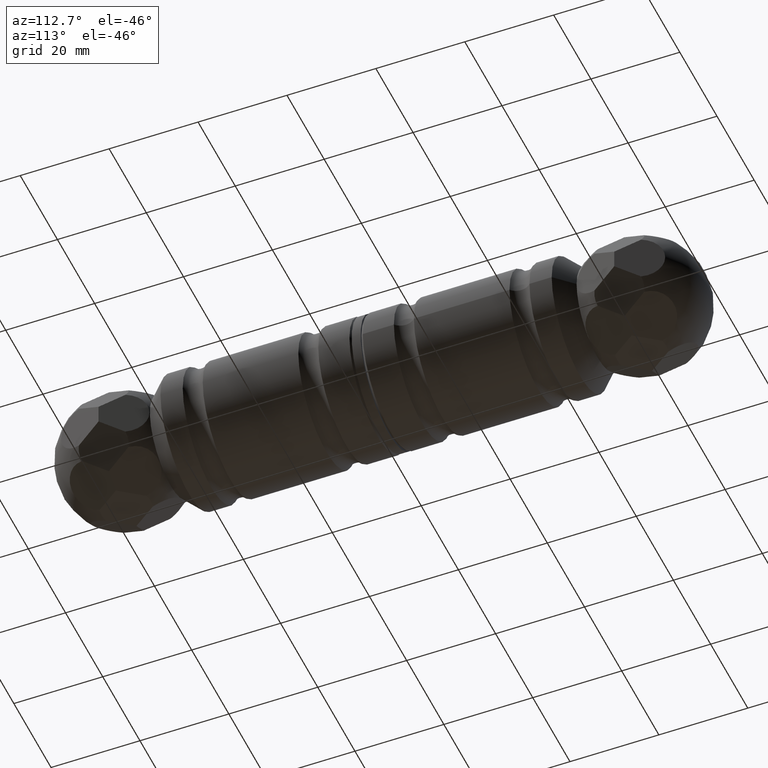
[diagram: clean part render]
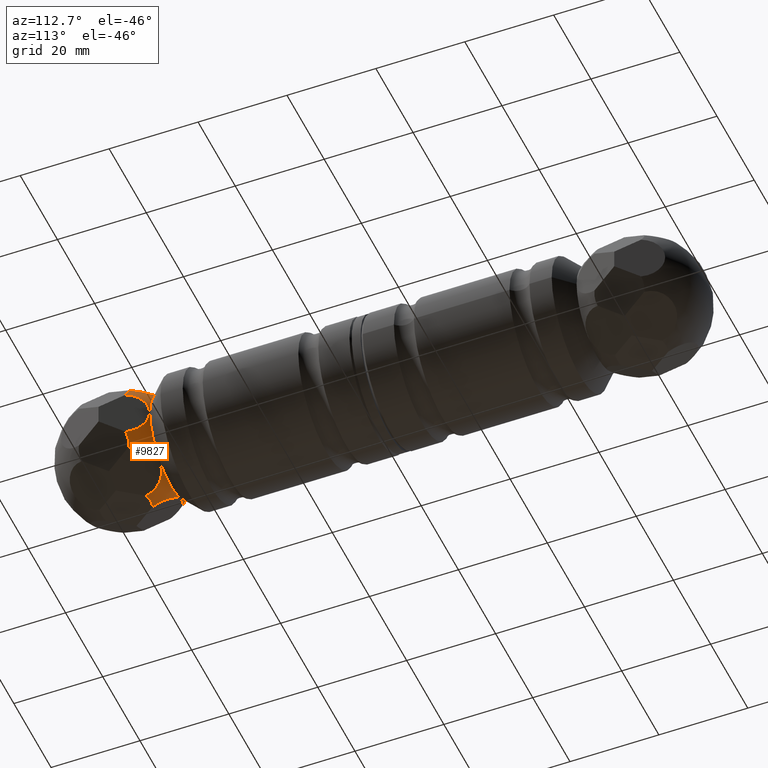
[diagram: same view with one face highlighted and labeled with its STEP entity id]
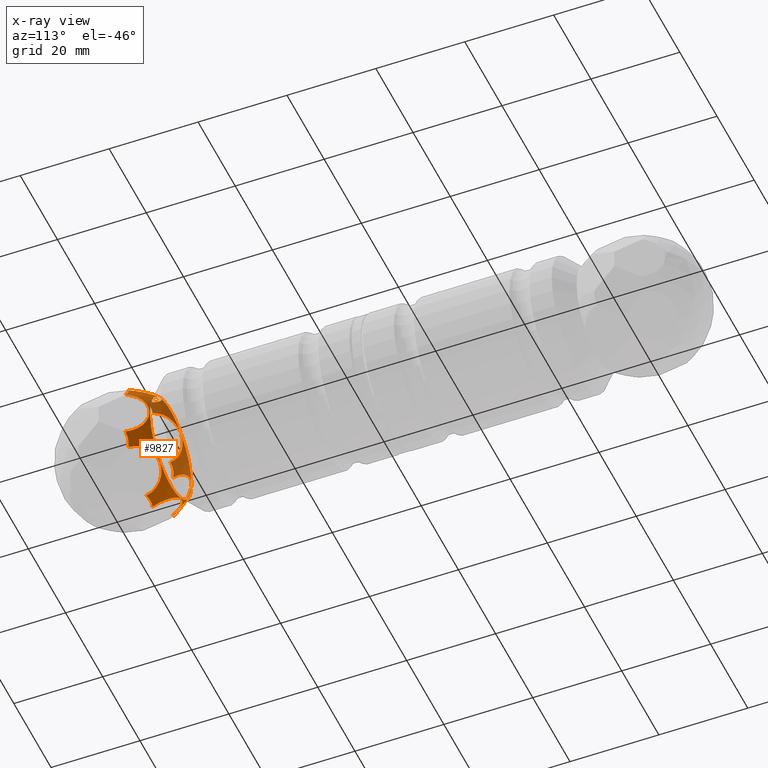
[diagram: x-ray of the same camera — body ghosted, the highlighted face saturated]
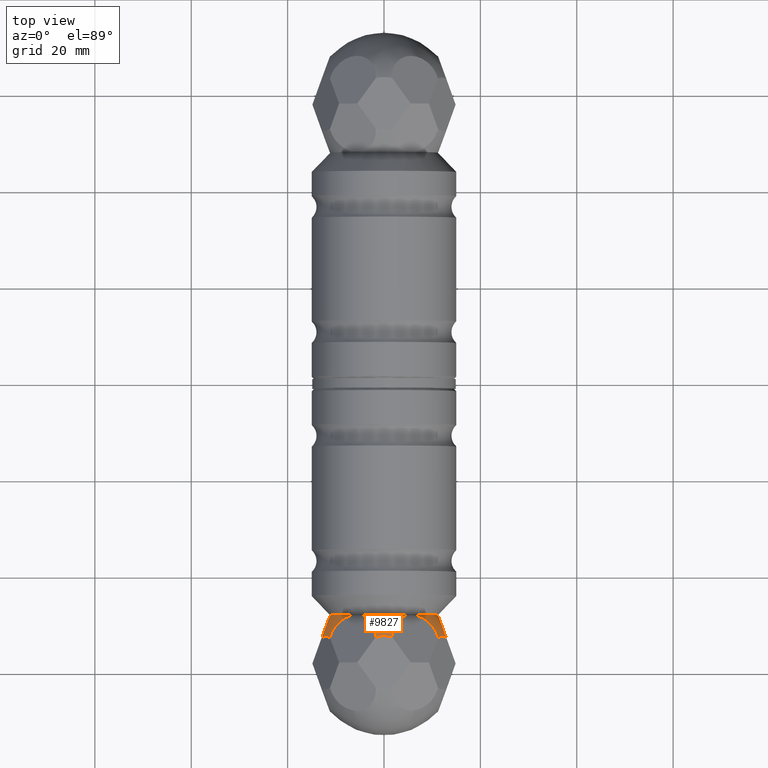
[diagram: same view with one face highlighted and labeled with its STEP entity id]
A machine part, auxiliary view. The second image highlights one B-rep face of the part: STEP entity #9827.
The next image is the same camera in x-ray: the body ghosted, the highlighted face saturated — about 34% of this face is hidden behind the body in this view.
A second angle (top view) of the same face is appended — the face is thin or edge-on in the first view.
In plain terms, the highlighted spherical surface has radius 15 mm.
Its self-contained STEP definition (entity closure, byte-faithful):
#26 = DIRECTION ( 'NONE',  ( -1.000000000000000000, 1.258552433082305433E-15, -1.069769568119959500E-14 ) ) ;
#210 = VERTEX_POINT ( 'NONE', #1002 ) ;
#557 = VERTEX_POINT ( 'NONE', #2635 ) ;
#596 = DIRECTION ( 'NONE',  ( 0.000000000000000000, 0.000000000000000000, -1.000000000000000000 ) ) ;
#604 = DIRECTION ( 'NONE',  ( -0.8660254037844433705, 1.258552433082297347E-15, 0.4999999999999917843 ) ) ;
#696 = ORIENTED_EDGE ( 'NONE', *, *, #9849, .T. ) ;
#743 = EDGE_CURVE ( 'NONE', #12859, #11657, #13451, .T. ) ;
#886 = CIRCLE ( 'NONE', #2001, 5.513392784846703698 ) ;
#1002 = CARTESIAN_POINT ( 'NONE',  ( -11.22412204793012158, 51.75975497768799016, 8.459250342631023045 ) ) ;
#1026 = CARTESIAN_POINT ( 'NONE',  ( 12.08105438279286759, 56.99999999999999289, 6.975000000000103562 ) ) ;
#1038 = ORIENTED_EDGE ( 'NONE', *, *, #5070, .F. ) ;
#1409 = ORIENTED_EDGE ( 'NONE', *, *, #6094, .F. ) ;
#1484 = EDGE_CURVE ( 'NONE', #6245, #5237, #3318, .T. ) ;
#1526 = EDGE_LOOP ( 'NONE', ( #1038 ) ) ;
#1577 = DIRECTION ( 'NONE',  ( 0.4698463103929464979, 0.3420201433256693790, 0.8137976813493777994 ) ) ;
#1650 = AXIS2_PLACEMENT_3D ( 'NONE', #3725, #10144, #12026 ) ;
#1822 = CARTESIAN_POINT ( 'NONE',  ( 1.713864669725671863, 51.75975497768806122, 13.95000000000002949 ) ) ;
#1880 = CIRCLE ( 'NONE', #12227, 5.513392784846689487 ) ;
#2001 = AXIS2_PLACEMENT_3D ( 'NONE', #1026, #11387, #5115 ) ;
#2008 = CARTESIAN_POINT ( 'NONE',  ( -12.93798671765578412, 51.75975497768804701, -5.490749657368947823 ) ) ;
#2067 = DIRECTION ( 'NONE',  ( 0.9396926207859083169, 0.3420201433256694346, -0.000000000000000000 ) ) ;
#2282 = CARTESIAN_POINT ( 'NONE',  ( -1.479066868981249828E-13, 56.99999999999999289, 13.95000000000001350 ) ) ;
#2635 = CARTESIAN_POINT ( 'NONE',  ( 11.22412204793005586, 51.75975497768796174, 8.459250342631092323 ) ) ;
#2685 = DIRECTION ( 'NONE',  ( 6.162975822039154730E-32, -1.000000000000000000, 0.000000000000000000 ) ) ;
#2743 = CARTESIAN_POINT ( 'NONE',  ( -6.554356029981602383, 52.22881900060691152, -11.35247765482381865 ) ) ;
#2778 = CARTESIAN_POINT ( 'NONE',  ( 0.000000000000000000, 47.00000000000000000, -6.842277657836020854E-46 ) ) ;
#3032 = DIRECTION ( 'NONE',  ( 0.3420201433256693790, -0.9396926207859080948, 0.000000000000000000 ) ) ;
#3318 = CIRCLE ( 'NONE', #9186, 5.513392784846712580 ) ;
#3595 = DIRECTION ( 'NONE',  ( 0.8660254037844417052, -6.468871966888534240E-32, -0.4999999999999948930 ) ) ;
#3725 = CARTESIAN_POINT ( 'NONE',  ( 13.10871205996341615, 52.22881900060691152, -2.996431540116346828E-34 ) ) ;
#3852 = CARTESIAN_POINT ( 'NONE',  ( 6.554356029981681431, 52.22881900060691152, 11.35247765482377069 ) ) ;
#3947 = FACE_OUTER_BOUND ( 'NONE', #5463, .T. ) ;
#3950 = VERTEX_POINT ( 'NONE', #8504 ) ;
#3994 = CARTESIAN_POINT ( 'NONE',  ( -12.08105438279296528, 56.99999999999999289, 6.974999999999931255 ) ) ;
#4215 = CARTESIAN_POINT ( 'NONE',  ( -13.10871205996341615, 52.22881900060691152, 7.223520691251005368E-33 ) ) ;
#4498 = DIRECTION ( 'NONE',  ( 1.000000000000000000, -1.258552433082300305E-15, 1.761973406315220506E-14 ) ) ;
#4610 = DIRECTION ( 'NONE',  ( 1.000000000000000000, 0.000000000000000000, 0.000000000000000000 ) ) ;
#4635 = AXIS2_PLACEMENT_3D ( 'NONE', #3852, #4918, #11135 ) ;
#4897 = ORIENTED_EDGE ( 'NONE', *, *, #1484, .F. ) ;
#4918 = DIRECTION ( 'NONE',  ( -0.4698463103929521600, 0.3420201433256693790, -0.8137976813493744688 ) ) ;
#5070 = EDGE_CURVE ( 'NONE', #10375, #10375, #11253, .T. ) ;
#5076 = CARTESIAN_POINT ( 'NONE',  ( -12.93798671765575925, 51.75975497768796174, 5.490749657368924730 ) ) ;
#5084 = AXIS2_PLACEMENT_3D ( 'NONE', #3994, #10547, #11448 ) ;
#5115 = DIRECTION ( 'NONE',  ( -0.5000000000000072164, 0.000000000000000000, 0.8660254037844344888 ) ) ;
#5138 = EDGE_CURVE ( 'NONE', #557, #11889, #8515, .T. ) ;
#5164 = AXIS2_PLACEMENT_3D ( 'NONE', #2743, #1577, #604 ) ;
#5192 = DIRECTION ( 'NONE',  ( -0.8660254037844328234, 0.000000000000000000, -0.5000000000000101030 ) ) ;
#5237 = VERTEX_POINT ( 'NONE', #7757 ) ;
#5463 = EDGE_LOOP ( 'NONE', ( #12312, #8817, #1409, #696, #11335, #9842, #6773, #11896, #7305, #6688, #4897, #9082 ) ) ;
#5552 = DIRECTION ( 'NONE',  ( -0.000000000000000000, 0.000000000000000000, 1.000000000000000000 ) ) ;
#5582 = EDGE_CURVE ( 'NONE', #13188, #3950, #11332, .T. ) ;
#5799 = CARTESIAN_POINT ( 'NONE',  ( 12.93798671765575925, 51.75975497768796174, -5.490749657368924730 ) ) ;
#5938 = AXIS2_PLACEMENT_3D ( 'NONE', #4215, #2067, #3032 ) ;
#5971 = DIRECTION ( 'NONE',  ( -0.8660254037844310471, 8.938567588209319741E-32, -0.5000000000000132117 ) ) ;
#6018 = EDGE_CURVE ( 'NONE', #557, #8872, #886, .T. ) ;
#6024 = AXIS2_PLACEMENT_3D ( 'NONE', #2778, #2685, #596 ) ;
#6094 = EDGE_CURVE ( 'NONE', #7838, #11889, #1880, .T. ) ;
#6154 = CIRCLE ( 'NONE', #7899, 5.513392784846717909 ) ;
#6245 = VERTEX_POINT ( 'NONE', #5799 ) ;
#6517 = VERTEX_POINT ( 'NONE', #10784 ) ;
#6556 = CARTESIAN_POINT ( 'NONE',  ( -6.554356029981764031, 52.22881900060691152, 11.35247765482373339 ) ) ;
#6688 = ORIENTED_EDGE ( 'NONE', *, *, #8041, .T. ) ;
#6773 = ORIENTED_EDGE ( 'NONE', *, *, #12698, .F. ) ;
#6819 = AXIS2_PLACEMENT_3D ( 'NONE', #11819, #10680, #4498 ) ;
#6932 = CIRCLE ( 'NONE', #8153, 5.513392784846724126 ) ;
#6987 = CARTESIAN_POINT ( 'NONE',  ( -12.08105438279281607, 56.99999999999999289, -6.975000000000185274 ) ) ;
#7305 = ORIENTED_EDGE ( 'NONE', *, *, #5582, .F. ) ;
#7377 = FACE_OUTER_BOUND ( 'NONE', #1526, .T. ) ;
#7588 = EDGE_CURVE ( 'NONE', #6517, #3950, #8230, .T. ) ;
#7723 = DIRECTION ( 'NONE',  ( 0.8660254037844363761, 0.000000000000000000, 0.5000000000000041078 ) ) ;
#7757 = CARTESIAN_POINT ( 'NONE',  ( 11.22412204793017132, 51.75975497768796174, -8.459250342630936004 ) ) ;
#7838 = VERTEX_POINT ( 'NONE', #9724 ) ;
#7899 = AXIS2_PLACEMENT_3D ( 'NONE', #6987, #5971, #9090 ) ;
#8041 = EDGE_CURVE ( 'NONE', #13188, #5237, #6932, .T. ) ;
#8153 = AXIS2_PLACEMENT_3D ( 'NONE', #9649, #9383, #5192 ) ;
#8230 = CIRCLE ( 'NONE', #5164, 5.513392784846725014 ) ;
#8303 = EDGE_CURVE ( 'NONE', #12859, #210, #9666, .T. ) ;
#8504 = CARTESIAN_POINT ( 'NONE',  ( -1.713864669725547296, 51.75975497768801858, -13.95000000000003482 ) ) ;
#8515 = CIRCLE ( 'NONE', #4635, 5.513392784846733896 ) ;
#8633 = CARTESIAN_POINT ( 'NONE',  ( 12.08105438279296528, 56.99999999999999289, -6.974999999999931255 ) ) ;
#8817 = ORIENTED_EDGE ( 'NONE', *, *, #5138, .T. ) ;
#8857 = CIRCLE ( 'NONE', #11472, 5.513392784846710803 ) ;
#8872 = VERTEX_POINT ( 'NONE', #10446 ) ;
#9082 = ORIENTED_EDGE ( 'NONE', *, *, #11106, .T. ) ;
#9090 = DIRECTION ( 'NONE',  ( 0.5000000000000132117, -1.258552433082298925E-15, -0.8660254037844309360 ) ) ;
#9141 = CARTESIAN_POINT ( 'NONE',  ( 1.713864669725831735, 51.75975497768794753, -13.94999999999997264 ) ) ;
#9155 = AXIS2_PLACEMENT_3D ( 'NONE', #10926, #5552, #4610 ) ;
#9186 = AXIS2_PLACEMENT_3D ( 'NONE', #8633, #3595, #11746 ) ;
#9383 = DIRECTION ( 'NONE',  ( -0.4698463103929635398, 0.3420201433256693790, 0.8137976813493679185 ) ) ;
#9649 = CARTESIAN_POINT ( 'NONE',  ( 6.554356029981839526, 52.22881900060691152, -11.35247765482368187 ) ) ;
#9666 = CIRCLE ( 'NONE', #5084, 5.513392784846712580 ) ;
#9692 = CARTESIAN_POINT ( 'NONE',  ( 0.000000000000000000, 47.00000000000000000, -11.18033988749894547 ) ) ;
#9724 = CARTESIAN_POINT ( 'NONE',  ( -1.713864669725769563, 51.75975497768799016, 13.94999999999999574 ) ) ;
#9827 = ADVANCED_FACE ( 'NONE', ( #7377, #3947 ), #11589, .T. ) ;
#9842 = ORIENTED_EDGE ( 'NONE', *, *, #743, .T. ) ;
#9849 = EDGE_CURVE ( 'NONE', #7838, #210, #8857, .T. ) ;
#10144 = DIRECTION ( 'NONE',  ( -0.9396926207859083169, 0.3420201433256694346, -0.000000000000000000 ) ) ;
#10375 = VERTEX_POINT ( 'NONE', #9692 ) ;
#10446 = CARTESIAN_POINT ( 'NONE',  ( 12.93798671765578234, 51.75975497768803280, 5.490749657368936276 ) ) ;
#10547 = DIRECTION ( 'NONE',  ( -0.8660254037844417052, 6.468871966888534240E-32, 0.4999999999999948930 ) ) ;
#10680 = DIRECTION ( 'NONE',  ( 1.765254609153998899E-14, -8.812853623292794860E-46, -1.000000000000000000 ) ) ;
#10784 = CARTESIAN_POINT ( 'NONE',  ( -11.22412204792999368, 51.75975497768796174, -8.459250342631168706 ) ) ;
#10926 = CARTESIAN_POINT ( 'NONE',  ( -3.081487911019577365E-30, 56.99999999999999289, 0.000000000000000000 ) ) ;
#11106 = EDGE_CURVE ( 'NONE', #6245, #8872, #11505, .T. ) ;
#11135 = DIRECTION ( 'NONE',  ( 0.8660254037844398178, 0.000000000000000000, -0.4999999999999978906 ) ) ;
#11253 = CIRCLE ( 'NONE', #6024, 11.18033988749894547 ) ;
#11332 = CIRCLE ( 'NONE', #6819, 5.513392784846711692 ) ;
#11335 = ORIENTED_EDGE ( 'NONE', *, *, #8303, .F. ) ;
#11387 = DIRECTION ( 'NONE',  ( 0.8660254037844345998, -8.938567588209330689E-32, 0.5000000000000072164 ) ) ;
#11448 = DIRECTION ( 'NONE',  ( -0.4999999999999948375, 0.000000000000000000, -0.8660254037844415942 ) ) ;
#11472 = AXIS2_PLACEMENT_3D ( 'NONE', #6556, #12945, #7723 ) ;
#11505 = CIRCLE ( 'NONE', #1650, 5.513392784846726791 ) ;
#11589 = SPHERICAL_SURFACE ( 'NONE', #9155, 14.99999999999999645 ) ;
#11657 = VERTEX_POINT ( 'NONE', #2008 ) ;
#11746 = DIRECTION ( 'NONE',  ( 0.4999999999999948375, 0.000000000000000000, 0.8660254037844415942 ) ) ;
#11819 = CARTESIAN_POINT ( 'NONE',  ( 2.462530179769826647E-13, 56.99999999999999289, -13.95000000000000462 ) ) ;
#11889 = VERTEX_POINT ( 'NONE', #1822 ) ;
#11896 = ORIENTED_EDGE ( 'NONE', *, *, #7588, .T. ) ;
#12026 = DIRECTION ( 'NONE',  ( 0.3420201433256693790, 0.9396926207859080948, 8.881784197001249365E-16 ) ) ;
#12227 = AXIS2_PLACEMENT_3D ( 'NONE', #2282, #12681, #26 ) ;
#12312 = ORIENTED_EDGE ( 'NONE', *, *, #6018, .F. ) ;
#12681 = DIRECTION ( 'NONE',  ( -1.060262988517024338E-14, 4.461165032909084819E-46, 1.000000000000000000 ) ) ;
#12698 = EDGE_CURVE ( 'NONE', #6517, #11657, #6154, .T. ) ;
#12859 = VERTEX_POINT ( 'NONE', #5076 ) ;
#12945 = DIRECTION ( 'NONE',  ( 0.4698463103929579332, 0.3420201433256693790, -0.8137976813493713601 ) ) ;
#13188 = VERTEX_POINT ( 'NONE', #9141 ) ;
#13451 = CIRCLE ( 'NONE', #5938, 5.513392784846726791 ) ;